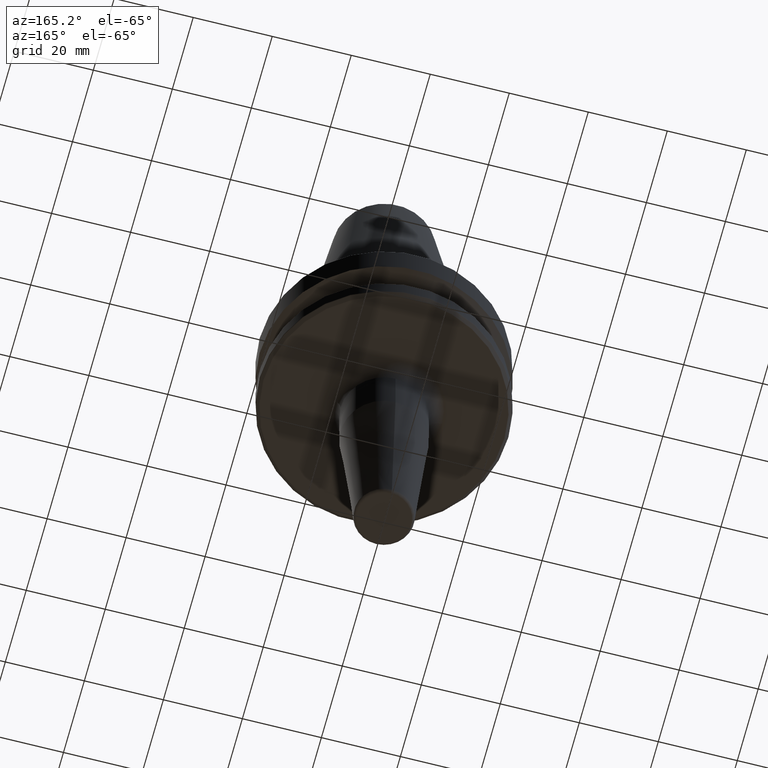
[diagram: clean part render]
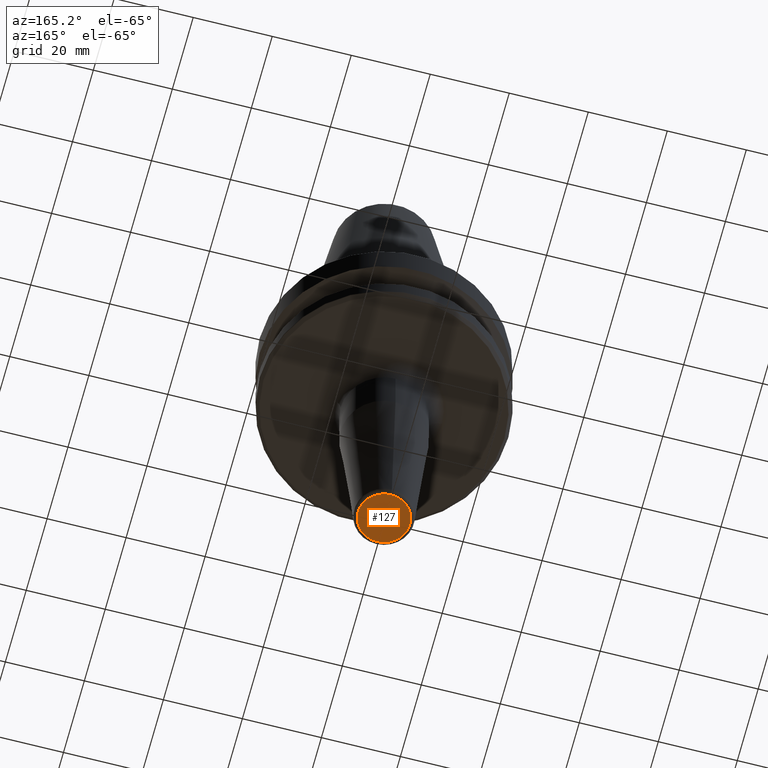
[diagram: same view with one face highlighted and labeled with its STEP entity id]
A machine part, auxiliary view. The second image highlights one B-rep face of the part: STEP entity #127.
In plain terms, the highlighted planar face has unit normal (0, -0, 1).
Its self-contained STEP definition (entity closure, byte-faithful):
#89 = DIRECTION ( 'NONE',  ( 0.0000000000000000000, -2.332660569804487100E-017, 1.000000000000000000 ) ) ;
#121 = VERTEX_POINT ( 'NONE', #381 ) ;
#127 = ADVANCED_FACE ( 'NONE', ( #1009 ), #584, .F. ) ;
#182 = AXIS2_PLACEMENT_3D ( 'NONE', #490, #1181, #587 ) ;
#311 = CIRCLE ( 'NONE', #1015, 6.575609508341783800 ) ;
#381 = CARTESIAN_POINT ( 'NONE',  ( 0.0000000000000000000, 6.575609508341785600, -90.00000000000000000 ) ) ;
#461 = CARTESIAN_POINT ( 'NONE',  ( 0.0000000000000000000, 1.469576158976826700E-015, -90.00000000000000000 ) ) ;
#490 = CARTESIAN_POINT ( 'NONE',  ( 0.0000000000000000000, 1.469576158976826700E-015, -90.00000000000000000 ) ) ;
#491 = CIRCLE ( 'NONE', #182, 6.575609508341783800 ) ;
#542 = EDGE_CURVE ( 'NONE', #561, #121, #491, .T. ) ;
#557 = DIRECTION ( 'NONE',  ( 0.0000000000000000000, 1.000000000000000000, 0.0000000000000000000 ) ) ;
#561 = VERTEX_POINT ( 'NONE', #1093 ) ;
#577 = EDGE_LOOP ( 'NONE', ( #1206, #1262 ) ) ;
#584 = PLANE ( 'NONE',  #864 ) ;
#587 = DIRECTION ( 'NONE',  ( 0.0000000000000000000, 1.000000000000000000, 0.0000000000000000000 ) ) ;
#691 = CARTESIAN_POINT ( 'NONE',  ( 0.0000000000000000000, 1.788994954575957400E-033, -90.00000000000000000 ) ) ;
#789 = DIRECTION ( 'NONE',  ( 0.0000000000000000000, -1.000000000000000000, -2.332660569804487100E-017 ) ) ;
#864 = AXIS2_PLACEMENT_3D ( 'NONE', #691, #89, #789 ) ;
#1000 = EDGE_CURVE ( 'NONE', #121, #561, #311, .T. ) ;
#1009 = FACE_OUTER_BOUND ( 'NONE', #577, .T. ) ;
#1015 = AXIS2_PLACEMENT_3D ( 'NONE', #461, #1148, #557 ) ;
#1093 = CARTESIAN_POINT ( 'NONE',  ( 8.663234947719058100E-016, -6.575609508341782000, -90.00000000000000000 ) ) ;
#1148 = DIRECTION ( 'NONE',  ( -0.0000000000000000000, 2.332660569804487100E-017, -1.000000000000000000 ) ) ;
#1181 = DIRECTION ( 'NONE',  ( -0.0000000000000000000, 2.332660569804487100E-017, -1.000000000000000000 ) ) ;
#1206 = ORIENTED_EDGE ( 'NONE', *, *, #1000, .T. ) ;
#1262 = ORIENTED_EDGE ( 'NONE', *, *, #542, .T. ) ;